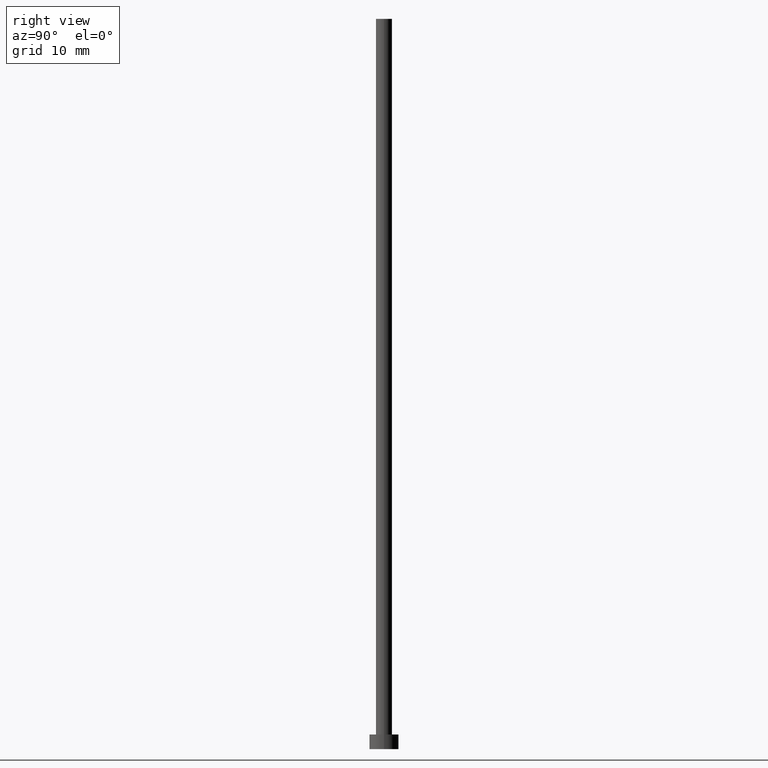
[diagram: clean part render]
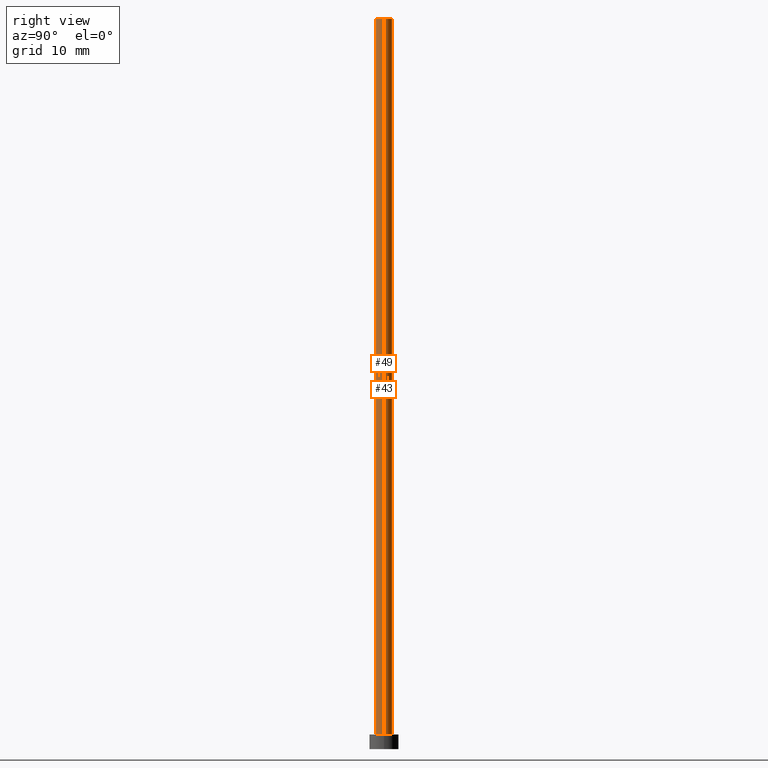
[diagram: same view with one multi-face feature highlighted, each face labeled with its STEP entity id]
A machine part, right view. The highlighted faces form ONE feature: a constant-radius fillet chain: 2 tangent blend faces with common blend radius 1.1 mm. The faces share edges in the B-rep.
Their STEP definitions:
[1] entity #49 (Cylinder):
#2 = DIRECTION ( 'NONE',  ( -0.000000000000000000, -0.000000000000000000, -1.000000000000000000 ) ) ;
#7 = CARTESIAN_POINT ( 'NONE',  ( 1.100000000000000089, 1.347111479062088503E-16, 100.0000000000000000 ) ) ;
#15 = DIRECTION ( 'NONE',  ( -0.000000000000000000, -0.000000000000000000, -1.000000000000000000 ) ) ;
#16 = CIRCLE ( 'NONE', #253, 1.100000000000000089 ) ;
#24 = VERTEX_POINT ( 'NONE', #182 ) ;
#26 = VERTEX_POINT ( 'NONE', #7 ) ;
#40 = CARTESIAN_POINT ( 'NONE',  ( 0.000000000000000000, 0.000000000000000000, 2.000000000000000000 ) ) ;
#49 = ADVANCED_FACE ( 'NONE', ( #178 ), #179, .T. ) ;
#61 = CARTESIAN_POINT ( 'NONE',  ( 0.000000000000000000, 0.000000000000000000, 100.0000000000000000 ) ) ;
#63 = CARTESIAN_POINT ( 'NONE',  ( -1.100000000000000089, 0.000000000000000000, 100.0000000000000000 ) ) ;
#64 = DIRECTION ( 'NONE',  ( 1.000000000000000000, 0.000000000000000000, 0.000000000000000000 ) ) ;
#69 = EDGE_CURVE ( 'NONE', #24, #250, #132, .T. ) ;
#79 = DIRECTION ( 'NONE',  ( 0.000000000000000000, 0.000000000000000000, 1.000000000000000000 ) ) ;
#82 = CARTESIAN_POINT ( 'NONE',  ( 0.000000000000000000, 0.000000000000000000, 100.0000000000000000 ) ) ;
#86 = DIRECTION ( 'NONE',  ( 1.000000000000000000, 0.000000000000000000, 0.000000000000000000 ) ) ;
#111 = EDGE_CURVE ( 'NONE', #24, #26, #215, .T. ) ;
#117 = DIRECTION ( 'NONE',  ( 0.000000000000000000, 0.000000000000000000, 1.000000000000000000 ) ) ;
#120 = CARTESIAN_POINT ( 'NONE',  ( -1.100000000000000089, 0.000000000000000000, 2.000000000000000000 ) ) ;
#128 = CARTESIAN_POINT ( 'NONE',  ( 1.100000000000000089, 1.347111479062088503E-16, 2.000000000000000000 ) ) ;
#132 = LINE ( 'NONE', #63, #202 ) ;
#136 = EDGE_CURVE ( 'NONE', #26, #186, #177, .T. ) ;
#142 = ORIENTED_EDGE ( 'NONE', *, *, #136, .F. ) ;
#150 = VECTOR ( 'NONE', #2, 1000.000000000000000 ) ;
#166 = ORIENTED_EDGE ( 'NONE', *, *, #111, .F. ) ;
#177 = LINE ( 'NONE', #240, #150 ) ;
#178 = FACE_OUTER_BOUND ( 'NONE', #190, .T. ) ;
#179 = CYLINDRICAL_SURFACE ( 'NONE', #223, 1.100000000000000089 ) ;
#180 = DIRECTION ( 'NONE',  ( -0.000000000000000000, -0.000000000000000000, -1.000000000000000000 ) ) ;
#182 = CARTESIAN_POINT ( 'NONE',  ( -1.100000000000000089, 0.000000000000000000, 100.0000000000000000 ) ) ;
#186 = VERTEX_POINT ( 'NONE', #128 ) ;
#190 = EDGE_LOOP ( 'NONE', ( #142, #166, #251, #225 ) ) ;
#202 = VECTOR ( 'NONE', #15, 1000.000000000000000 ) ;
#213 = AXIS2_PLACEMENT_3D ( 'NONE', #82, #79, #64 ) ;
#215 = CIRCLE ( 'NONE', #213, 1.100000000000000089 ) ;
#220 = EDGE_CURVE ( 'NONE', #250, #186, #16, .T. ) ;
#223 = AXIS2_PLACEMENT_3D ( 'NONE', #61, #180, #241 ) ;
#225 = ORIENTED_EDGE ( 'NONE', *, *, #220, .T. ) ;
#240 = CARTESIAN_POINT ( 'NONE',  ( 1.100000000000000089, 1.347111479062088503E-16, 100.0000000000000000 ) ) ;
#241 = DIRECTION ( 'NONE',  ( -1.000000000000000000, 0.000000000000000000, 0.000000000000000000 ) ) ;
#250 = VERTEX_POINT ( 'NONE', #120 ) ;
#251 = ORIENTED_EDGE ( 'NONE', *, *, #69, .T. ) ;
#253 = AXIS2_PLACEMENT_3D ( 'NONE', #40, #117, #86 ) ;
[2] entity #43 (Cylinder):
#2 = DIRECTION ( 'NONE',  ( -0.000000000000000000, -0.000000000000000000, -1.000000000000000000 ) ) ;
#3 = CARTESIAN_POINT ( 'NONE',  ( 0.000000000000000000, 0.000000000000000000, 100.0000000000000000 ) ) ;
#5 = CIRCLE ( 'NONE', #73, 1.100000000000000089 ) ;
#7 = CARTESIAN_POINT ( 'NONE',  ( 1.100000000000000089, 1.347111479062088503E-16, 100.0000000000000000 ) ) ;
#10 = ORIENTED_EDGE ( 'NONE', *, *, #69, .F. ) ;
#13 = DIRECTION ( 'NONE',  ( 1.000000000000000000, 0.000000000000000000, 0.000000000000000000 ) ) ;
#15 = DIRECTION ( 'NONE',  ( -0.000000000000000000, -0.000000000000000000, -1.000000000000000000 ) ) ;
#22 = ORIENTED_EDGE ( 'NONE', *, *, #95, .F. ) ;
#24 = VERTEX_POINT ( 'NONE', #182 ) ;
#26 = VERTEX_POINT ( 'NONE', #7 ) ;
#32 = CYLINDRICAL_SURFACE ( 'NONE', #230, 1.100000000000000089 ) ;
#33 = EDGE_CURVE ( 'NONE', #186, #250, #5, .T. ) ;
#43 = ADVANCED_FACE ( 'NONE', ( #56 ), #32, .T. ) ;
#48 = DIRECTION ( 'NONE',  ( 0.000000000000000000, 0.000000000000000000, 1.000000000000000000 ) ) ;
#54 = CIRCLE ( 'NONE', #93, 1.100000000000000089 ) ;
#56 = FACE_OUTER_BOUND ( 'NONE', #159, .T. ) ;
#63 = CARTESIAN_POINT ( 'NONE',  ( -1.100000000000000089, 0.000000000000000000, 100.0000000000000000 ) ) ;
#69 = EDGE_CURVE ( 'NONE', #24, #250, #132, .T. ) ;
#71 = ORIENTED_EDGE ( 'NONE', *, *, #33, .T. ) ;
#73 = AXIS2_PLACEMENT_3D ( 'NONE', #148, #48, #13 ) ;
#77 = CARTESIAN_POINT ( 'NONE',  ( 0.000000000000000000, 0.000000000000000000, 100.0000000000000000 ) ) ;
#83 = DIRECTION ( 'NONE',  ( 0.000000000000000000, 0.000000000000000000, 1.000000000000000000 ) ) ;
#93 = AXIS2_PLACEMENT_3D ( 'NONE', #3, #83, #157 ) ;
#95 = EDGE_CURVE ( 'NONE', #26, #24, #54, .T. ) ;
#114 = DIRECTION ( 'NONE',  ( -1.000000000000000000, 0.000000000000000000, 0.000000000000000000 ) ) ;
#120 = CARTESIAN_POINT ( 'NONE',  ( -1.100000000000000089, 0.000000000000000000, 2.000000000000000000 ) ) ;
#128 = CARTESIAN_POINT ( 'NONE',  ( 1.100000000000000089, 1.347111479062088503E-16, 2.000000000000000000 ) ) ;
#132 = LINE ( 'NONE', #63, #202 ) ;
#136 = EDGE_CURVE ( 'NONE', #26, #186, #177, .T. ) ;
#148 = CARTESIAN_POINT ( 'NONE',  ( 0.000000000000000000, 0.000000000000000000, 2.000000000000000000 ) ) ;
#150 = VECTOR ( 'NONE', #2, 1000.000000000000000 ) ;
#157 = DIRECTION ( 'NONE',  ( 1.000000000000000000, 0.000000000000000000, 0.000000000000000000 ) ) ;
#159 = EDGE_LOOP ( 'NONE', ( #22, #247, #71, #10 ) ) ;
#177 = LINE ( 'NONE', #240, #150 ) ;
#182 = CARTESIAN_POINT ( 'NONE',  ( -1.100000000000000089, 0.000000000000000000, 100.0000000000000000 ) ) ;
#186 = VERTEX_POINT ( 'NONE', #128 ) ;
#197 = DIRECTION ( 'NONE',  ( -0.000000000000000000, -0.000000000000000000, -1.000000000000000000 ) ) ;
#202 = VECTOR ( 'NONE', #15, 1000.000000000000000 ) ;
#230 = AXIS2_PLACEMENT_3D ( 'NONE', #77, #197, #114 ) ;
#240 = CARTESIAN_POINT ( 'NONE',  ( 1.100000000000000089, 1.347111479062088503E-16, 100.0000000000000000 ) ) ;
#247 = ORIENTED_EDGE ( 'NONE', *, *, #136, .T. ) ;
#250 = VERTEX_POINT ( 'NONE', #120 ) ;